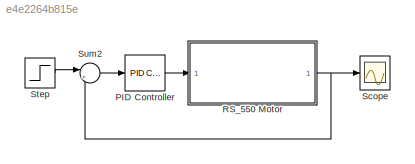
MODEL slx_e4e2264b815e
KIND model
CONFIG AbsTol = auto
CONFIG EnableMultiTasking = off
CONFIG FixedStep = auto
CONFIG MaxStep = auto
CONFIG MinStep = auto
CONFIG RelTol = 1e-3
CONFIG SampleTimeConstraint = Unconstrained
CONFIG SolverName = VariableStepAuto
CONFIG StartTime = 0.0
CONFIG StopTime = 5
BLOCK [Reference] PID Controller  REF=pid_lib/PID Controller
  Ports = [1, 1]
  SourceBlock = pid_lib/PID Controller
  SourceProductBaseCode = SL
  SourceType = PID 1dof
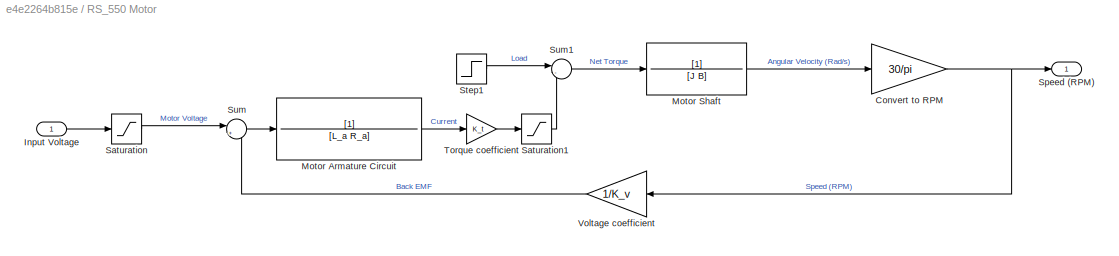
BLOCK [SubSystem] RS_550 Motor
  Ports = [1, 1]
  RequestExecContextInheritance = off
BLOCK [Gain] RS_550 Motor/Convert to RPM
  Gain = 30/pi
BLOCK [Inport] RS_550 Motor/Input Voltage
BLOCK [TransferFcn] RS_550 Motor/Motor Armature Circuit
  Denominator = [L_a R_a]
BLOCK [TransferFcn] RS_550 Motor/Motor Shaft
  Denominator = [J B]
BLOCK [Saturate] RS_550 Motor/Saturation
  LowerLimit = -24
  UpperLimit = 24
BLOCK [Saturate] RS_550 Motor/Saturation1
  LowerLimit = -0.02
  UpperLimit = 0.02
BLOCK [Outport] RS_550 Motor/Speed (RPM)
BLOCK [Step] RS_550 Motor/Step1
  After = 0.005
  SampleTime = 0
  Time = 2
BLOCK [Sum] RS_550 Motor/Sum
  Inputs = |+-
  Ports = [2, 1]
BLOCK [Sum] RS_550 Motor/Sum1
  Inputs = |-+
  NameLocation = top
  Ports = [2, 1]
BLOCK [Gain] RS_550 Motor/Torque coefficient
  Gain = K_t
BLOCK [Gain] RS_550 Motor/Voltage coefficient
  Gain = 1/K_v
  NameLocation = top
BLOCK [Scope] Scope
  Floating = off
  NumInputPorts = 1
  Ports = [1]
  ScopeSpecificationString = Simulink.scopes.TimeScopeBlockCfg('CurrentConfiguration', extmgr.ConfigurationSet(extmgr.Configuration('Core','General UI',true),extmgr.Configuration('Core','Source UI',true),extmgr.Configuration('Sources','WiredSimulink',true),extmgr.Configuration('Visuals','Time Domain',true,'SerializedDisplays',{struct('MinYLimReal','-2182.24109','MaxYLimReal','19640.1698','YLabelReal','','MinYLimMag','  0.0000...<+1826ch>
BLOCK [Step] Step
  After = 15000
  SampleTime = 0
BLOCK [Sum] Sum2
  Inputs = |+-
  Ports = [2, 1]
LINE PID Controller:1 -> RS_550 Motor:1
NET RS_550 Motor/Convert to RPM:1 -> RS_550 Motor/Speed (RPM):1, RS_550 Motor/Voltage coefficient:1
LINE RS_550 Motor/Input Voltage:1 -> RS_550 Motor/Saturation:1
LINE RS_550 Motor/Motor Armature Circuit:1 -> RS_550 Motor/Torque coefficient:1
LINE RS_550 Motor/Motor Shaft:1 -> RS_550 Motor/Convert to RPM:1
LINE RS_550 Motor/Saturation1:1 -> RS_550 Motor/Sum1:2
LINE RS_550 Motor/Saturation:1 -> RS_550 Motor/Sum:1
LINE RS_550 Motor/Step1:1 -> RS_550 Motor/Sum1:1
LINE RS_550 Motor/Sum1:1 -> RS_550 Motor/Motor Shaft:1
LINE RS_550 Motor/Sum:1 -> RS_550 Motor/Motor Armature Circuit:1
LINE RS_550 Motor/Torque coefficient:1 -> RS_550 Motor/Saturation1:1
LINE RS_550 Motor/Voltage coefficient:1 -> RS_550 Motor/Sum:2
NET RS_550 Motor:1 -> Scope:1, Sum2:2
LINE Step:1 -> Sum2:1
LINE Sum2:1 -> PID Controller:1
note: NET lines group one-source signal fan-out (src -> all destinations, sorted); 1:1 wires keep LINE
